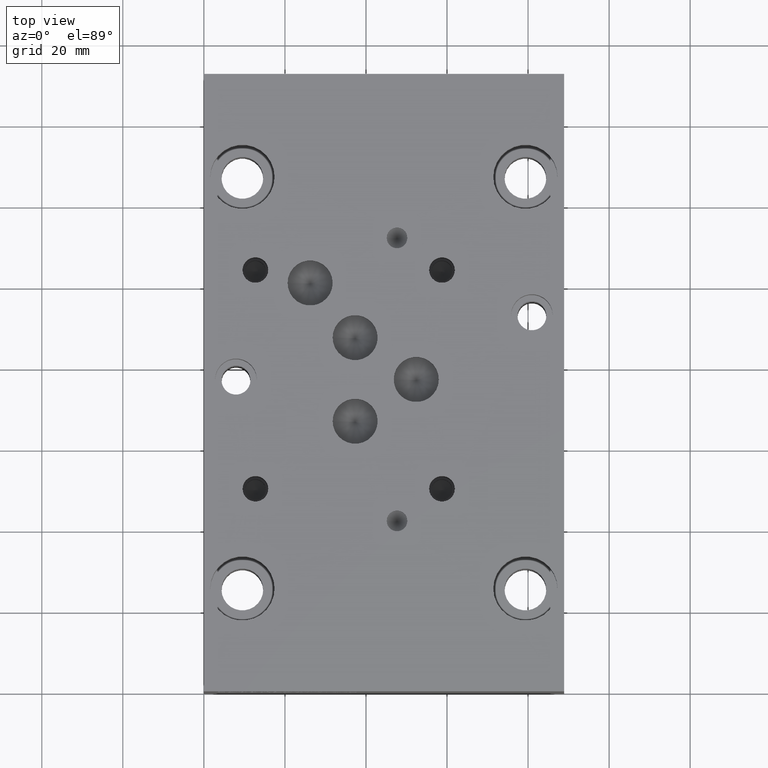
[diagram: clean part render]
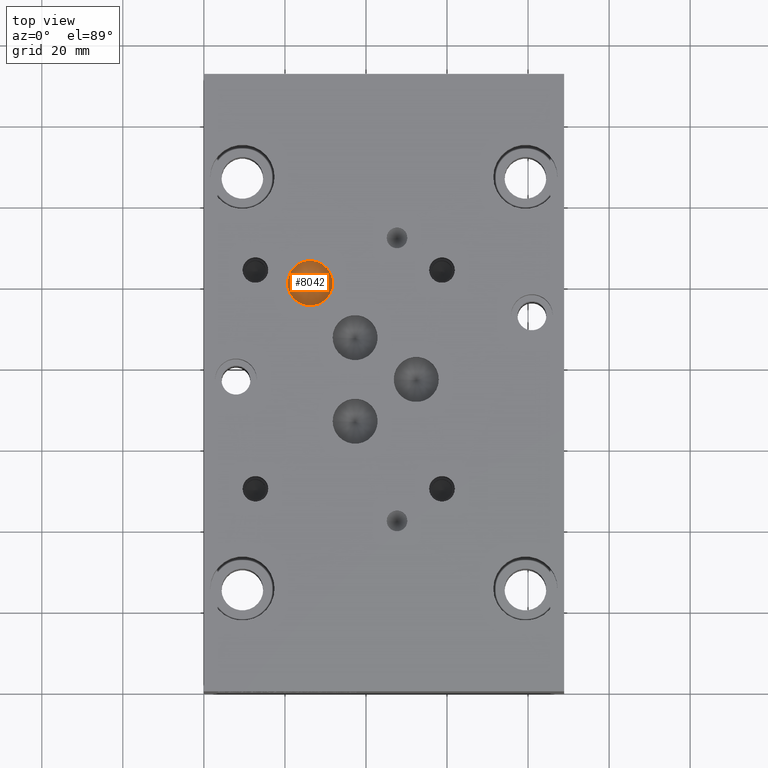
[diagram: same view with one face highlighted and labeled with its STEP entity id]
A machine part, top view. The second image highlights one B-rep face of the part: STEP entity #8042.
In plain terms, the highlighted conical surface has half-angle 60 deg.
Its self-contained STEP definition (entity closure, byte-faithful):
#29=CONICAL_SURFACE('',#8478,2.7813,1.0471975511966);
#148=CIRCLE('',#8479,5.5626);
#873=FACE_OUTER_BOUND('',#1343,.T.);
#1343=EDGE_LOOP('',(#6912,#6913,#6914));
#2219=LINE('',#13347,#3057);
#3057=VECTOR('',#10132,2.7813);
#3776=VERTEX_POINT('',#13344);
#3777=VERTEX_POINT('',#13346);
#4839=EDGE_CURVE('',#3776,#3776,#148,.T.);
#4840=EDGE_CURVE('',#3776,#3777,#2219,.T.);
#6912=ORIENTED_EDGE('',*,*,#4839,.T.);
#6913=ORIENTED_EDGE('',*,*,#4840,.T.);
#6914=ORIENTED_EDGE('',*,*,#4840,.F.);
#8042=ADVANCED_FACE('',(#873),#29,.F.);
#8478=AXIS2_PLACEMENT_3D('',#13343,#10128,#10129);
#8479=AXIS2_PLACEMENT_3D('',#13345,#10130,#10131);
#10128=DIRECTION('center_axis',(0.,0.,1.));
#10129=DIRECTION('ref_axis',(1.,0.,0.));
#10130=DIRECTION('center_axis',(0.,0.,1.));
#10131=DIRECTION('ref_axis',(1.,0.,0.));
#10132=DIRECTION('',(0.866025403784439,1.06057523872491E-16,-0.5));
#13343=CARTESIAN_POINT('Origin',(26.20772,100.7872,33.2826456963029));
#13344=CARTESIAN_POINT('',(20.64512,100.7872,34.88843));
#13345=CARTESIAN_POINT('Origin',(26.20772,100.7872,34.88843));
#13346=CARTESIAN_POINT('',(26.20772,100.7872,31.6768613926058));
#13347=CARTESIAN_POINT('',(23.42642,100.7872,33.2826456963029));